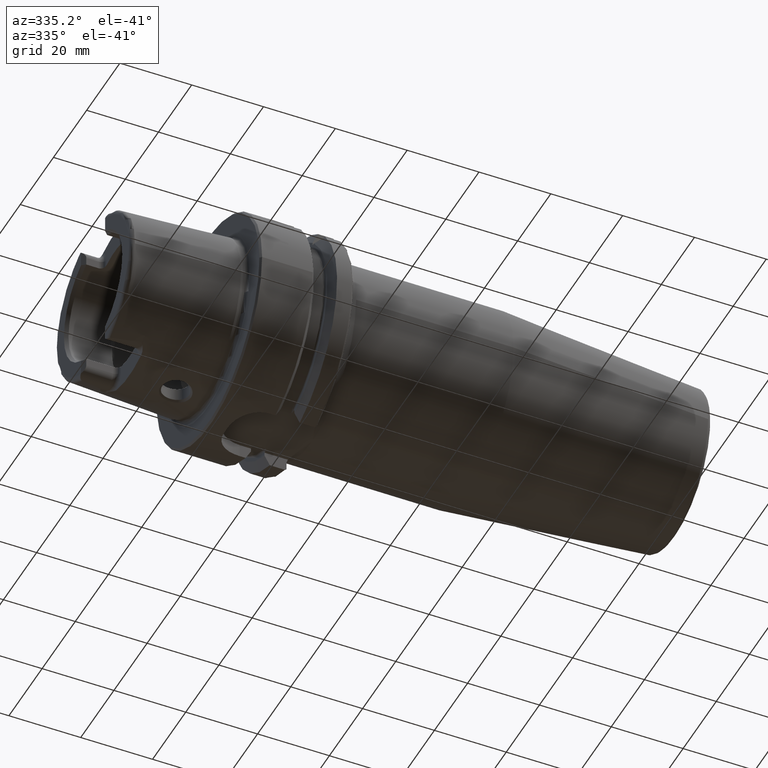
[diagram: clean part render]
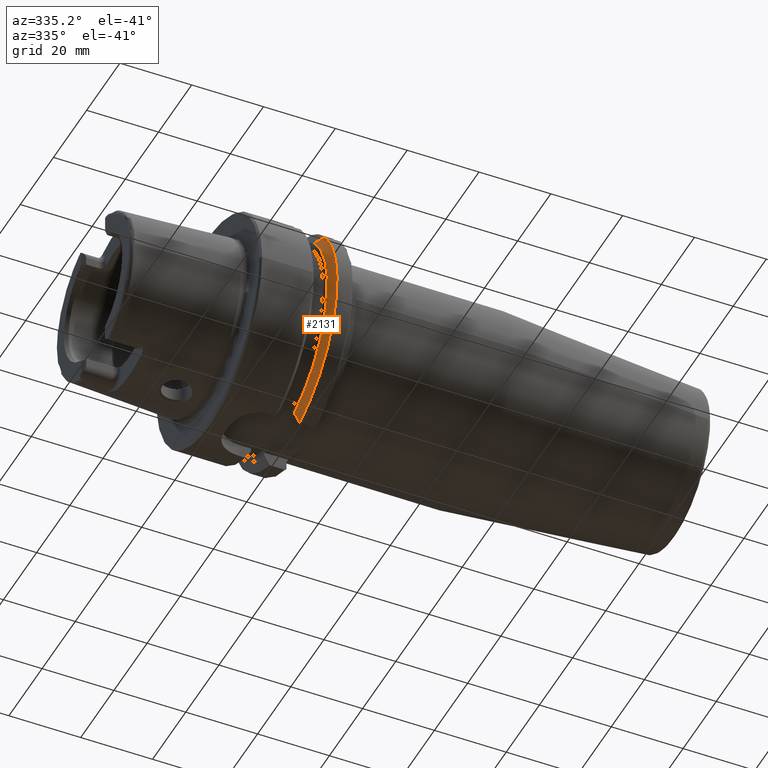
[diagram: same view with one face highlighted and labeled with its STEP entity id]
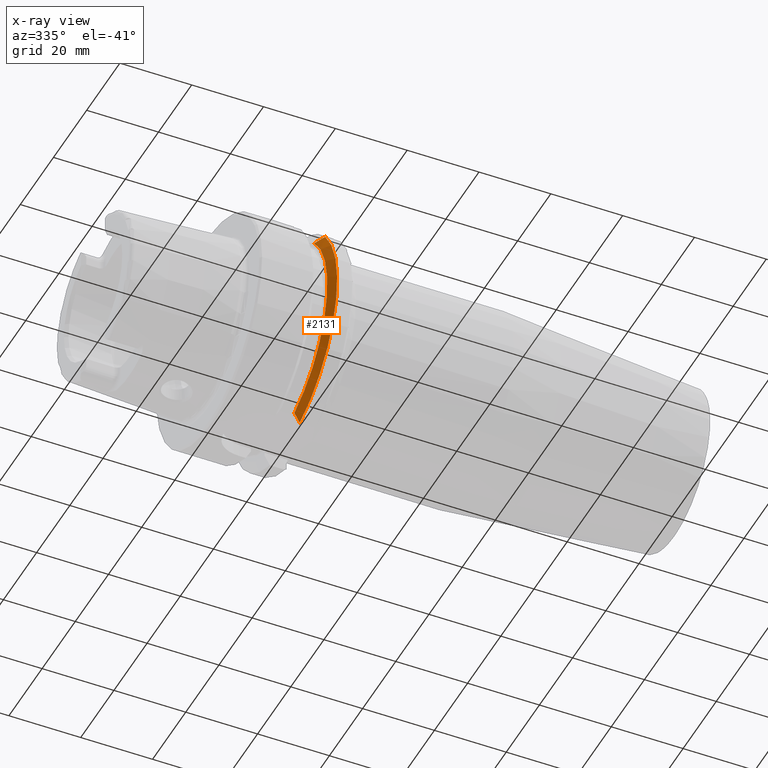
[diagram: x-ray of the same camera — body ghosted, the highlighted face saturated]
A machine part, auxiliary view. The second image highlights one B-rep face of the part: STEP entity #2131.
The next image is the same camera in x-ray: the body ghosted, the highlighted face saturated — about 0% of this face is hidden behind the body in this view.
In plain terms, the highlighted conical surface has half-angle 60 deg.
Its self-contained STEP definition (entity closure, byte-faithful):
#17=(
BOUNDED_CURVE()
B_SPLINE_CURVE(2,(#4026,#4027,#4028),.UNSPECIFIED.,.F.,.F.)
B_SPLINE_CURVE_WITH_KNOTS((3,3),(0.,0.378858277140999),.UNSPECIFIED.)
CURVE()
GEOMETRIC_REPRESENTATION_ITEM()
RATIONAL_B_SPLINE_CURVE((1.,1.00166199353854,1.))
REPRESENTATION_ITEM('')
);
#23=(
BOUNDED_CURVE()
B_SPLINE_CURVE(2,(#4166,#4167,#4168),.UNSPECIFIED.,.F.,.F.)
B_SPLINE_CURVE_WITH_KNOTS((3,3),(0.,0.311314369989023),.UNSPECIFIED.)
CURVE()
GEOMETRIC_REPRESENTATION_ITEM()
RATIONAL_B_SPLINE_CURVE((1.,1.00102053193598,1.))
REPRESENTATION_ITEM('')
);
#299=FACE_OUTER_BOUND('',#430,.T.);
#430=EDGE_LOOP('',(#1772,#1773,#1774,#1775));
#766=CIRCLE('',#2328,28.8975952641916);
#780=CIRCLE('',#2361,31.5);
#946=VERTEX_POINT('',#4022);
#948=VERTEX_POINT('',#4025);
#970=VERTEX_POINT('',#4122);
#975=VERTEX_POINT('',#4164);
#1201=EDGE_CURVE('',#948,#946,#17,.T.);
#1231=EDGE_CURVE('',#946,#970,#766,.T.);
#1241=EDGE_CURVE('',#970,#975,#23,.T.);
#1288=EDGE_CURVE('',#948,#975,#780,.T.);
#1772=ORIENTED_EDGE('',*,*,#1201,.T.);
#1773=ORIENTED_EDGE('',*,*,#1231,.T.);
#1774=ORIENTED_EDGE('',*,*,#1241,.T.);
#1775=ORIENTED_EDGE('',*,*,#1288,.F.);
#2050=CONICAL_SURFACE('',#2368,30.1987976320958,1.0471975511966);
#2131=ADVANCED_FACE('',(#299),#2050,.T.);
#2328=AXIS2_PLACEMENT_3D('',#4124,#2777,#2778);
#2361=AXIS2_PLACEMENT_3D('',#4376,#2863,#2864);
#2368=AXIS2_PLACEMENT_3D('',#4391,#2879,#2880);
#2777=DIRECTION('center_axis',(1.,0.,0.));
#2778=DIRECTION('ref_axis',(0.,0.,-1.));
#2863=DIRECTION('center_axis',(1.,0.,0.));
#2864=DIRECTION('ref_axis',(0.,0.,-1.));
#2879=DIRECTION('center_axis',(1.,0.,0.));
#2880=DIRECTION('ref_axis',(0.,-0.966819045705046,-0.255462194584608));
#4022=CARTESIAN_POINT('',(19.875,-20.8583559288126,20.));
#4025=CARTESIAN_POINT('',(21.3774990747593,-24.3361870472759,20.));
#4026=CARTESIAN_POINT('Ctrl Pts',(21.3774990747593,-24.3361870472759,20.));
#4027=CARTESIAN_POINT('Ctrl Pts',(20.5684390397668,-22.5223452916166,20.));
#4028=CARTESIAN_POINT('Ctrl Pts',(19.875,-20.8583559288126,20.));
#4122=CARTESIAN_POINT('',(19.875,-9.,-27.4603534582684));
#4124=CARTESIAN_POINT('Origin',(19.875,0.,0.));
#4164=CARTESIAN_POINT('',(21.3774990747593,-9.,-30.1869176962472));
#4166=CARTESIAN_POINT('Ctrl Pts',(19.875,-9.,-27.4603534582684));
#4167=CARTESIAN_POINT('Ctrl Pts',(20.5907174110267,-9.,-28.7648946319029));
#4168=CARTESIAN_POINT('Ctrl Pts',(21.3774990747593,-9.,-30.1869176962472));
#4376=CARTESIAN_POINT('Origin',(21.3774990747593,0.,0.));
#4391=CARTESIAN_POINT('Origin',(20.6262495373797,0.,0.));